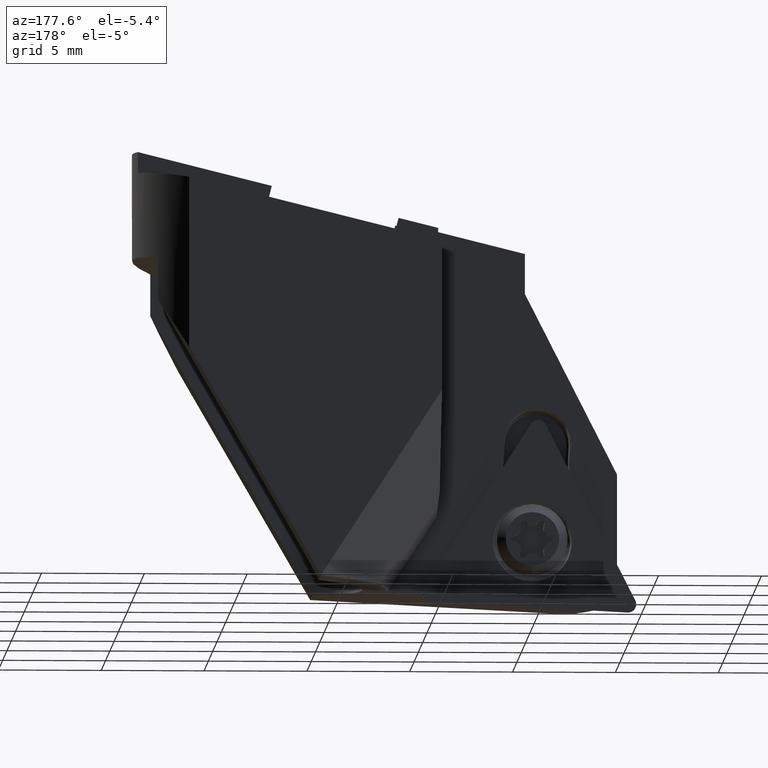
[diagram: clean part render]
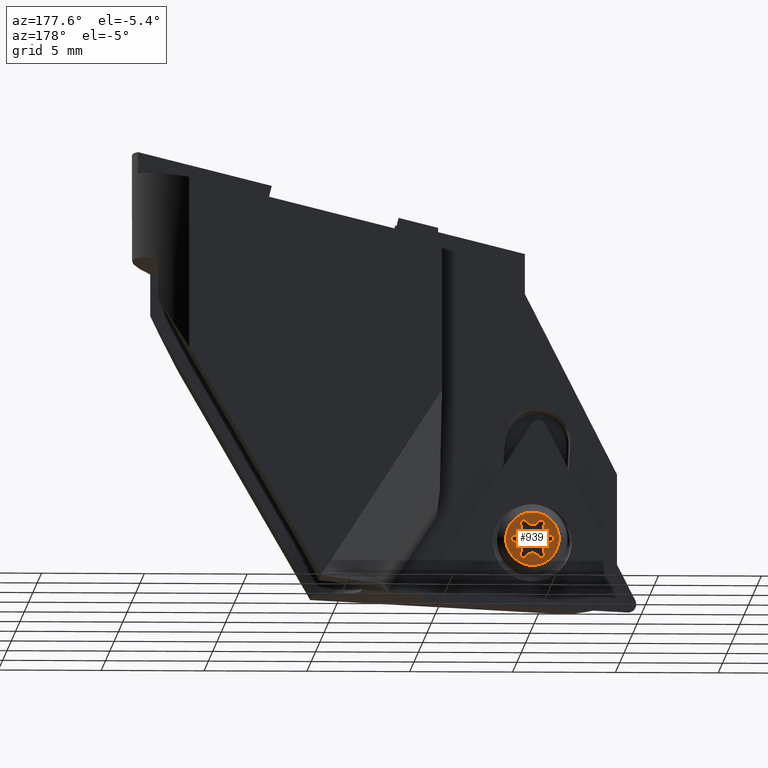
[diagram: same view with one face highlighted and labeled with its STEP entity id]
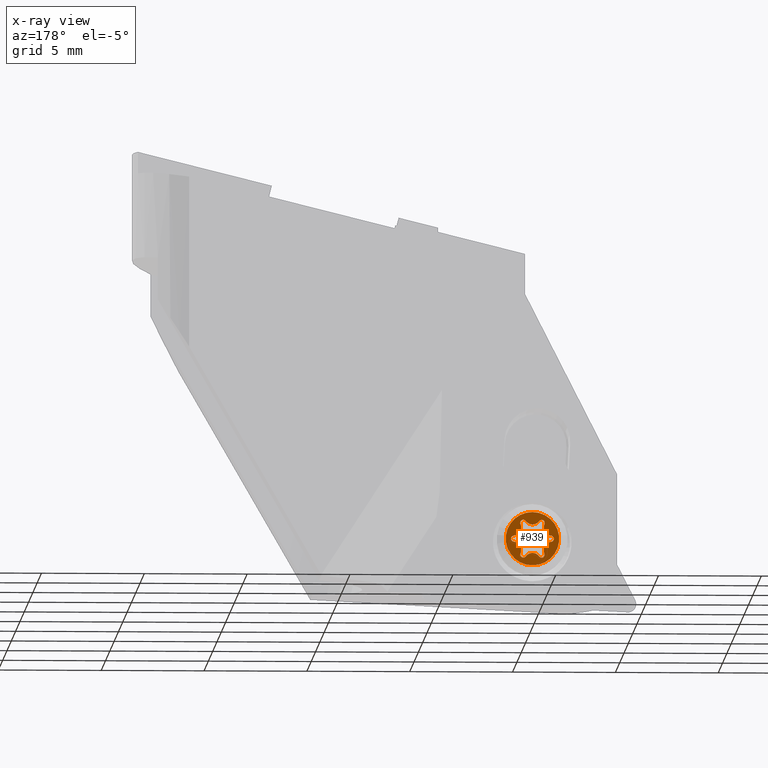
[diagram: x-ray of the same camera — body ghosted, the highlighted face saturated]
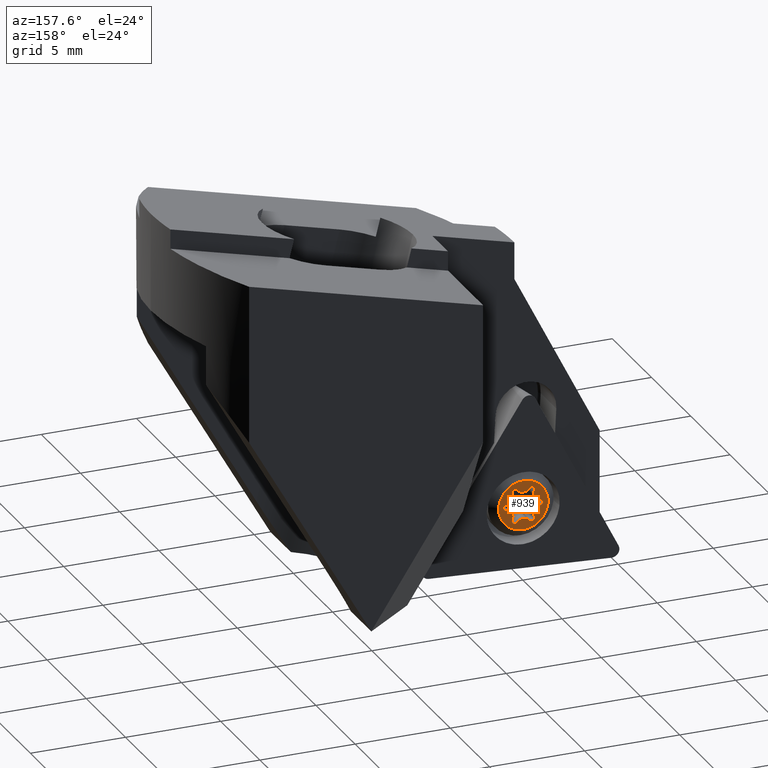
[diagram: same view with one face highlighted and labeled with its STEP entity id]
A machine part, auxiliary view. The second image highlights one B-rep face of the part: STEP entity #939.
The next image is the same camera in x-ray: the body ghosted, the highlighted face saturated — about 0% of this face is hidden behind the body in this view.
A second angle (auxiliary view) of the same face is appended — the face is thin or edge-on in the first view.
In plain terms, the highlighted planar face has unit normal (0, -1, -0).
Its self-contained STEP definition (entity closure, byte-faithful):
#797=EDGE_CURVE('NONE',#1049,#1709,#2287,.T.);
#807=EDGE_CURVE('NONE',#2131,#1771,#2299,.T.);
#811=VERTEX_POINT('NONE',#2303);
#851=VERTEX_POINT('',#2346);
#861=VERTEX_POINT('NONE',#2360);
#903=VERTEX_POINT('NONE',#2410);
#909=EDGE_CURVE('NONE',#1369,#1699,#2416,.T.);
#931=VERTEX_POINT('NONE',#2440);
#939=ADVANCED_FACE('NONE',(#2448,#2449),#2450,.F.);
#1049=VERTEX_POINT('NONE',#2569);
#1085=VERTEX_POINT('NONE',#2610);
#1111=EDGE_CURVE('NONE',#1569,#931,#2637,.T.);
#1207=EDGE_CURVE('NONE',#1709,#1049,#2745,.T.);
#1209=VERTEX_POINT('NONE',#2747);
#1227=EDGE_CURVE('NONE',#811,#851,#2767,.T.);
#1305=EDGE_CURVE('NONE',#2059,#1385,#2855,.T.);
#1369=VERTEX_POINT('NONE',#2927);
#1385=VERTEX_POINT('NONE',#2944);
#1407=VERTEX_POINT('NONE',#2970);
#1411=EDGE_CURVE('NONE',#903,#2131,#2974,.T.);
#1557=VERTEX_POINT('NONE',#3137);
#1569=VERTEX_POINT('NONE',#3151);
#1587=EDGE_CURVE('NONE',#1085,#1407,#3169,.T.);
#1595=EDGE_CURVE('NONE',#851,#1557,#3177,.T.);
#1641=EDGE_CURVE('NONE',#1771,#1209,#3224,.T.);
#1697=EDGE_CURVE('NONE',#1209,#1085,#3283,.T.);
#1699=VERTEX_POINT('NONE',#3285);
#1709=VERTEX_POINT('NONE',#3296);
#1737=VERTEX_POINT('NONE',#3328);
#1771=VERTEX_POINT('NONE',#3365);
#1911=EDGE_CURVE('NONE',#931,#903,#3516,.T.);
#1957=EDGE_CURVE('NONE',#1699,#2059,#3569,.T.);
#2001=EDGE_CURVE('NONE',#1407,#1737,#3618,.T.);
#2013=VERTEX_POINT('',#3633);
#2015=EDGE_CURVE('NONE',#1557,#1369,#3635,.T.);
#2019=EDGE_CURVE('NONE',#1737,#811,#3639,.T.);
#2047=EDGE_CURVE('NONE',#861,#2013,#3669,.T.);
#2059=VERTEX_POINT('NONE',#3681);
#2109=EDGE_CURVE('NONE',#1385,#861,#3736,.T.);
#2131=VERTEX_POINT('',#3761);
#2179=EDGE_CURVE('NONE',#2013,#1569,#3813,.T.);
#2287=CIRCLE('',#3932,1.3);
#2299=CIRCLE('',#3946,0.15);
#2303=CARTESIAN_POINT('',(-9.58473738936251,0.279999999999956,-17.8213041394772));
#2346=CARTESIAN_POINT('',(-9.90837375299887,0.279999999999957,-17.9862307378932));
#2360=CARTESIAN_POINT('',(-10.4903978977528,0.279999999999962,-19.3899541544178));
#2410=CARTESIAN_POINT('',(-9.5847373893625,0.279999999999962,-19.5391344094014));
#2416=CIRCLE('',#4103,0.15);
#2440=CARTESIAN_POINT('',(-9.90837375299886,0.279999999999962,-19.3742078109853));
#2448=FACE_OUTER_BOUND('',#4147,.T.);
#2449=FACE_BOUND('',#4148,.T.);
#2450=PLANE('',#4149);
#2569=CARTESIAN_POINT('',(-9.90837375299887,0.279999999999955,-17.3802192744393));
#2610=CARTESIAN_POINT('',(-9.00271324460856,0.279999999999959,-18.5310390194557));
#2637=CIRCLE('',#4405,0.4);
#2745=CIRCLE('',#4545,1.3);
#2747=CARTESIAN_POINT('',(-9.00271324460856,0.27999999999996,-18.8293995294228));
#2767=CIRCLE('',#4572,0.4);
#2855=CIRCLE('',#4687,0.15);
#2927=CARTESIAN_POINT('',(-10.3533737529989,0.279999999999956,-17.7594566650711));
#2944=CARTESIAN_POINT('',(-10.8140342613892,0.279999999999959,-18.8293995294228));
#2970=CARTESIAN_POINT('',(-9.32634960824492,0.279999999999957,-17.9704843944607));
#2974=CIRCLE('',#4859,0.15);
#3137=CARTESIAN_POINT('',(-10.2320101166352,0.279999999999956,-17.8213041394772));
#3151=CARTESIAN_POINT('',(-10.2320101166352,0.279999999999962,-19.5391344094014));
#3169=CIRCLE('',#5504,0.4);
#3177=CIRCLE('',#5515,0.4);
#3224=CIRCLE('',#5581,0.4);
#3283=CIRCLE('',#5662,0.15);
#3285=CARTESIAN_POINT('',(-10.4903978977528,0.279999999999957,-17.9704843944607));
#3296=CARTESIAN_POINT('',(-9.90837375299888,0.279999999999964,-19.9802192744393));
#3328=CARTESIAN_POINT('',(-9.46337375299887,0.279999999999956,-17.7594566650711));
#3365=CARTESIAN_POINT('',(-9.32634960824492,0.279999999999962,-19.3899541544178));
#3516=CIRCLE('',#5983,0.4);
#3569=CIRCLE('',#6063,0.4);
#3618=CIRCLE('',#6136,0.15);
#3633=CARTESIAN_POINT('',(-10.3533737529989,0.279999999999962,-19.6009818838074));
#3635=CIRCLE('',#6159,0.15);
#3639=CIRCLE('',#6166,0.15);
#3669=CIRCLE('',#6210,0.15);
#3681=CARTESIAN_POINT('',(-10.8140342613892,0.279999999999958,-18.5310390194557));
#3736=CIRCLE('',#6298,0.4);
#3761=CARTESIAN_POINT('',(-9.46337375299888,0.279999999999962,-19.6009818838074));
#3813=CIRCLE('',#6404,0.15);
#3932=AXIS2_PLACEMENT_3D('',#6510,#6511,#6512);
#3946=AXIS2_PLACEMENT_3D('',#6536,#6537,#6538);
#4103=AXIS2_PLACEMENT_3D('',#6696,#6697,#6698);
#4147=EDGE_LOOP('',(#6732,#6733));
#4148=EDGE_LOOP('',(#6734,#6735,#6736,#6737,#6738,#6739,#6740,#6741,#6742,#6743,#6744,#6745,#6746,#6747,#6748,#6749,#6750,#6751));
#4149=AXIS2_PLACEMENT_3D('',#6752,#6753,#6754);
#4405=AXIS2_PLACEMENT_3D('',#6949,#6950,#6951);
#4545=AXIS2_PLACEMENT_3D('',#7093,#7094,#7095);
#4572=AXIS2_PLACEMENT_3D('',#7128,#7129,#7130);
#4687=AXIS2_PLACEMENT_3D('',#7255,#7256,#7257);
#4859=AXIS2_PLACEMENT_3D('',#7403,#7404,#7405);
#5504=AXIS2_PLACEMENT_3D('',#7628,#7629,#7630);
#5515=AXIS2_PLACEMENT_3D('',#7637,#7638,#7639);
#5581=AXIS2_PLACEMENT_3D('',#7667,#7668,#7669);
#5662=AXIS2_PLACEMENT_3D('',#7727,#7728,#7729);
#5983=AXIS2_PLACEMENT_3D('',#8015,#8016,#8017);
#6063=AXIS2_PLACEMENT_3D('',#8092,#8093,#8094);
#6136=AXIS2_PLACEMENT_3D('',#8162,#8163,#8164);
#6159=AXIS2_PLACEMENT_3D('',#8197,#8198,#8199);
#6166=AXIS2_PLACEMENT_3D('',#8201,#8202,#8203);
#6210=AXIS2_PLACEMENT_3D('',#8229,#8230,#8231);
#6298=AXIS2_PLACEMENT_3D('',#8291,#8292,#8293);
#6404=AXIS2_PLACEMENT_3D('',#8379,#8380,#8381);
#6510=CARTESIAN_POINT('',(-9.90837375299887,0.279999999999959,-18.6802192744393));
#6511=DIRECTION('',(-1.82730120409923E-016,1.0,3.486698404508E-015));
#6512=DIRECTION('',(3.60916308442274E-015,-3.486698404508E-015,1.0));
#6536=CARTESIAN_POINT('',(-9.46337375299888,0.279999999999962,-19.4509818838074));
#6537=DIRECTION('',(1.82730120409923E-016,-1.0,-3.486698404508E-015));
#6538=DIRECTION('',(-3.60916308442274E-015,3.486698404508E-015,-1.0));
#6696=CARTESIAN_POINT('',(-10.3533737529989,0.279999999999956,-17.9094566650711));
#6697=DIRECTION('',(1.82730120409923E-016,-1.0,-3.486698404508E-015));
#6698=DIRECTION('',(0.866025403784438,-1.58510027594242E-015,0.500000000000001));
#6732=ORIENTED_EDGE('',*,*,#1207,.T.);
#6733=ORIENTED_EDGE('',*,*,#797,.T.);
#6734=ORIENTED_EDGE('',*,*,#1697,.T.);
#6735=ORIENTED_EDGE('',*,*,#1587,.T.);
#6736=ORIENTED_EDGE('',*,*,#2001,.T.);
#6737=ORIENTED_EDGE('',*,*,#2019,.T.);
#6738=ORIENTED_EDGE('',*,*,#1227,.T.);
#6739=ORIENTED_EDGE('',*,*,#1595,.T.);
#6740=ORIENTED_EDGE('',*,*,#2015,.T.);
#6741=ORIENTED_EDGE('',*,*,#909,.T.);
#6742=ORIENTED_EDGE('',*,*,#1957,.T.);
#6743=ORIENTED_EDGE('',*,*,#1305,.T.);
#6744=ORIENTED_EDGE('',*,*,#2109,.T.);
#6745=ORIENTED_EDGE('',*,*,#2047,.T.);
#6746=ORIENTED_EDGE('',*,*,#2179,.T.);
#6747=ORIENTED_EDGE('',*,*,#1111,.T.);
#6748=ORIENTED_EDGE('',*,*,#1911,.T.);
#6749=ORIENTED_EDGE('',*,*,#1411,.T.);
#6750=ORIENTED_EDGE('',*,*,#807,.T.);
#6751=ORIENTED_EDGE('',*,*,#1641,.T.);
#6752=CARTESIAN_POINT('',(-8.60837375299887,0.279999999999959,-18.6802192744393));
#6753=DIRECTION('',(1.82730120409923E-016,-1.0,-3.486698404508E-015));
#6754=DIRECTION('',(1.0,1.82730120409936E-016,-3.60916308442274E-015));
#6949=CARTESIAN_POINT('',(-9.90837375299886,0.279999999999963,-19.7742078109853));
#6950=DIRECTION('',(-1.82730120409923E-016,1.0,3.486698404508E-015));
#6951=DIRECTION('',(-0.866025403784435,1.58510027594244E-015,-0.500000000000007));
#7093=CARTESIAN_POINT('',(-9.90837375299887,0.279999999999959,-18.6802192744393));
#7094=DIRECTION('',(-1.82730120409923E-016,1.0,3.486698404508E-015));
#7095=DIRECTION('',(3.60916308442274E-015,-3.486698404508E-015,1.0));
#7128=CARTESIAN_POINT('',(-9.90837375299887,0.279999999999955,-17.5862307378932));
#7129=DIRECTION('',(-1.82730120409923E-016,1.0,3.486698404508E-015));
#7130=DIRECTION('',(0.866025403784438,-1.58510027594242E-015,0.500000000000001));
#7255=CARTESIAN_POINT('',(-10.7983737529989,0.279999999999959,-18.6802192744393));
#7256=DIRECTION('',(1.82730120409923E-016,-1.0,-3.486698404508E-015));
#7257=DIRECTION('',(-3.61885139881396E-015,-3.486698404508E-015,1.0));
#7403=CARTESIAN_POINT('',(-9.46337375299888,0.279999999999962,-19.4509818838074));
#7404=DIRECTION('',(1.82730120409923E-016,-1.0,-3.486698404508E-015));
#7405=DIRECTION('',(-3.60916308442274E-015,3.486698404508E-015,-1.0));
#7628=CARTESIAN_POINT('',(-8.96095188890105,0.279999999999957,-18.1332250061663));
#7629=DIRECTION('',(-1.82730120409923E-016,1.0,3.486698404508E-015));
#7630=DIRECTION('',(0.866025403784438,1.90159812856559E-015,-0.500000000000001));
#7637=CARTESIAN_POINT('',(-9.90837375299887,0.279999999999955,-17.5862307378932));
#7638=DIRECTION('',(-1.82730120409923E-016,1.0,3.486698404508E-015));
#7639=DIRECTION('',(0.866025403784438,-1.58510027594242E-015,0.500000000000001));
#7667=CARTESIAN_POINT('',(-8.96095188890105,0.279999999999961,-19.2272135427123));
#7668=DIRECTION('',(-1.82730120409923E-016,1.0,3.486698404508E-015));
#7669=DIRECTION('',(-3.60916308442274E-015,3.486698404508E-015,-1.0));
#7727=CARTESIAN_POINT('',(-9.01837375299887,0.279999999999959,-18.6802192744393));
#7728=DIRECTION('',(1.82730120409923E-016,-1.0,-3.486698404508E-015));
#7729=DIRECTION('',(-3.60916308442274E-015,3.486698404508E-015,-1.0));
#8015=CARTESIAN_POINT('',(-9.90837375299886,0.279999999999963,-19.7742078109853));
#8016=DIRECTION('',(-1.82730120409923E-016,1.0,3.486698404508E-015));
#8017=DIRECTION('',(-0.866025403784435,1.58510027594244E-015,-0.500000000000007));
#8092=CARTESIAN_POINT('',(-10.8557956170967,0.279999999999957,-18.1332250061663));
#8093=DIRECTION('',(-1.82730120409923E-016,1.0,3.486698404508E-015));
#8094=DIRECTION('',(-3.43815103673304E-015,-3.486698404508E-015,1.0));
#8162=CARTESIAN_POINT('',(-9.46337375299887,0.279999999999957,-17.9094566650711));
#8163=DIRECTION('',(1.82730120409923E-016,-1.0,-3.486698404508E-015));
#8164=DIRECTION('',(0.866025403784438,1.90159812856559E-015,-0.500000000000001));
#8197=CARTESIAN_POINT('',(-10.3533737529989,0.279999999999956,-17.9094566650711));
#8198=DIRECTION('',(1.82730120409923E-016,-1.0,-3.486698404508E-015));
#8199=DIRECTION('',(0.866025403784438,-1.58510027594242E-015,0.500000000000001));
#8201=CARTESIAN_POINT('',(-9.46337375299887,0.279999999999957,-17.9094566650711));
#8202=DIRECTION('',(1.82730120409923E-016,-1.0,-3.486698404508E-015));
#8203=DIRECTION('',(0.866025403784438,1.90159812856559E-015,-0.500000000000001));
#8229=CARTESIAN_POINT('',(-10.3533737529989,0.279999999999962,-19.4509818838074));
#8230=DIRECTION('',(1.82730120409923E-016,-1.0,-3.486698404508E-015));
#8231=DIRECTION('',(-0.866025403784441,-1.90159812856557E-015,0.499999999999995));
#8291=CARTESIAN_POINT('',(-10.8557956170967,0.279999999999961,-19.2272135427123));
#8292=DIRECTION('',(-1.82730120409923E-016,1.0,3.486698404508E-015));
#8293=DIRECTION('',(-0.866025403784441,-1.90159812856557E-015,0.499999999999995));
#8379=CARTESIAN_POINT('',(-10.3533737529989,0.279999999999962,-19.4509818838074));
#8380=DIRECTION('',(1.82730120409923E-016,-1.0,-3.486698404508E-015));
#8381=DIRECTION('',(-0.866025403784441,-1.90159812856557E-015,0.499999999999995));